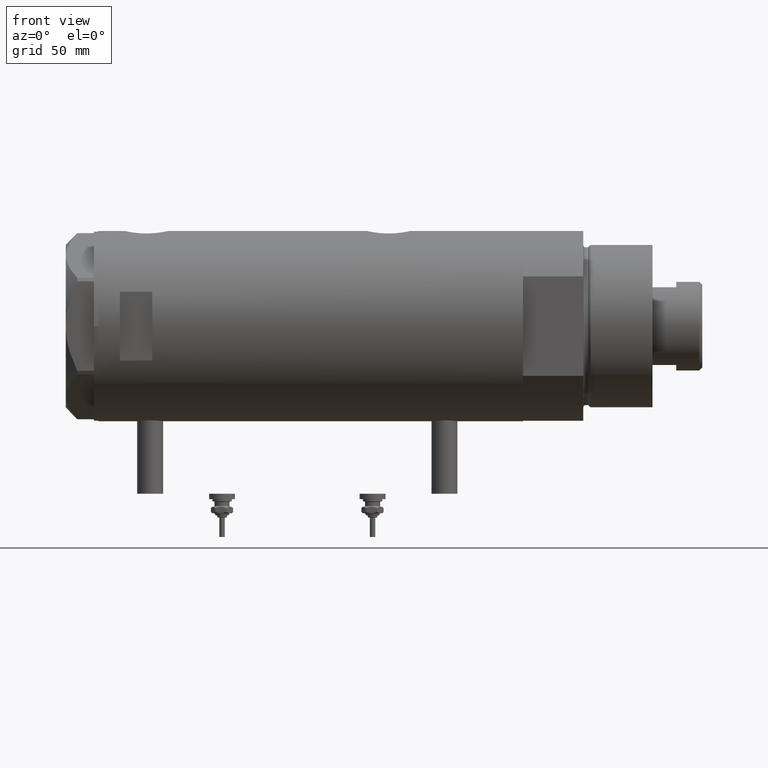
[diagram: clean part render]
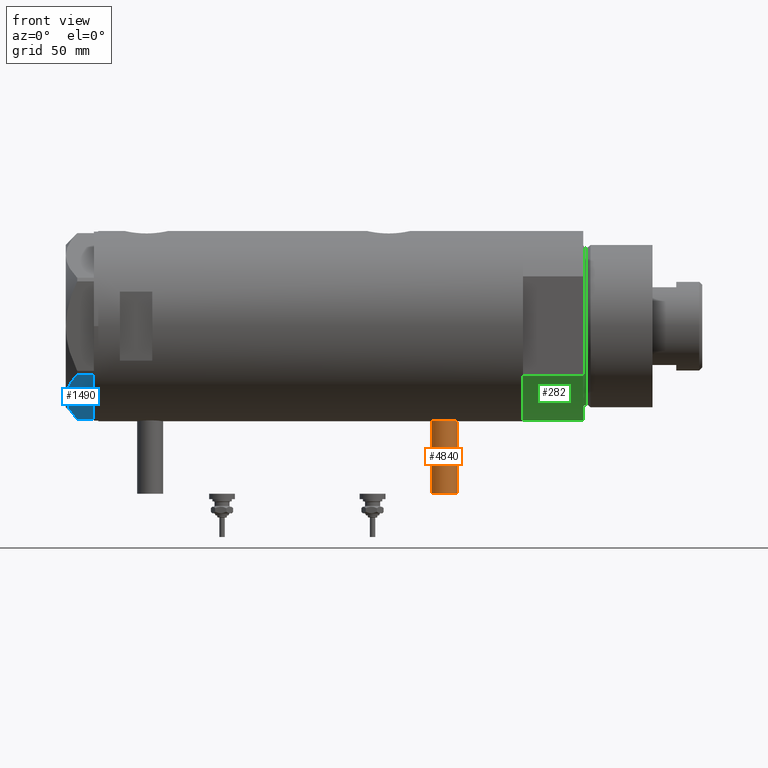
[diagram: same view with three faces highlighted in distinct colors, each labeled with its STEP entity id]
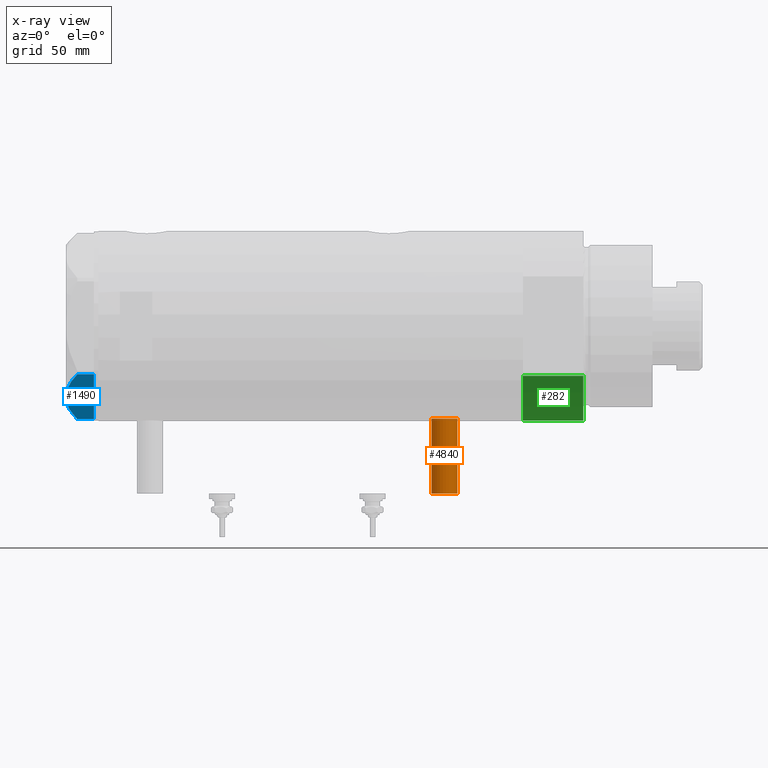
[diagram: x-ray of the same camera — body ghosted, the three highlighted faces saturated]
A machine part, front view with three faces highlighted in distinct colors.
The next image is the same camera in x-ray (body ghosted, the three faces saturated) — at least one of them is partly hidden behind the body in this view.
Their STEP definitions:

[orange] entity #4840 — the highlighted cylindrical surface (edge-blend (fillet) strip) has radius 6 mm, axis along (0, 0, 1).
#95 = VERTEX_POINT ( 'NONE', #5891 ) ;
#842 = EDGE_LOOP ( 'NONE', ( #2243, #4774, #2473, #2392 ) ) ;
#871 = DIRECTION ( 'NONE',  ( 0.000000000000000000, 0.000000000000000000, 1.000000000000000000 ) ) ;
#893 = EDGE_CURVE ( 'NONE', #1483, #4525, #3929, .T. ) ;
#1008 = EDGE_CURVE ( 'NONE', #95, #4525, #2934, .T. ) ;
#1260 = CARTESIAN_POINT ( 'NONE',  ( -77.50000000000000000, 7.347880794884122694E-16, -55.90000000000000568 ) ) ;
#1483 = VERTEX_POINT ( 'NONE', #3334 ) ;
#1525 = VERTEX_POINT ( 'NONE', #1927 ) ;
#1558 = LINE ( 'NONE', #5694, #2765 ) ;
#1927 = CARTESIAN_POINT ( 'NONE',  ( -77.50000000000000000, 0.000000000000000000, -67.90000000000001990 ) ) ;
#1941 = DIRECTION ( 'NONE',  ( -1.000000000000000000, 0.000000000000000000, 0.000000000000000000 ) ) ;
#2075 = DIRECTION ( 'NONE',  ( 1.000000000000000000, -0.000000000000000000, -0.000000000000000000 ) ) ;
#2243 = ORIENTED_EDGE ( 'NONE', *, *, #893, .F. ) ;
#2392 = ORIENTED_EDGE ( 'NONE', *, *, #1008, .T. ) ;
#2473 = ORIENTED_EDGE ( 'NONE', *, *, #3994, .T. ) ;
#2765 = VECTOR ( 'NONE', #2939, 1000.000000000000000 ) ;
#2934 = CIRCLE ( 'NONE', #5931, 6.000000000000005329 ) ;
#2939 = DIRECTION ( 'NONE',  ( 1.000000000000000000, -0.000000000000000000, -0.000000000000000000 ) ) ;
#2961 = CYLINDRICAL_SURFACE ( 'NONE', #3634, 6.000000000000005329 ) ;
#3265 = DIRECTION ( 'NONE',  ( 0.000000000000000000, 0.000000000000000000, 1.000000000000000000 ) ) ;
#3334 = CARTESIAN_POINT ( 'NONE',  ( -77.50000000000000000, 7.347880794884119736E-16, -55.90000000000000568 ) ) ;
#3624 = CARTESIAN_POINT ( 'NONE',  ( -42.79999999999999716, 7.347880794884119736E-16, -55.90000000000000568 ) ) ;
#3634 = AXIS2_PLACEMENT_3D ( 'NONE', #4409, #2075, #3878 ) ;
#3651 = EDGE_CURVE ( 'NONE', #1525, #1483, #4121, .T. ) ;
#3878 = DIRECTION ( 'NONE',  ( 0.000000000000000000, 0.000000000000000000, -1.000000000000000000 ) ) ;
#3929 = LINE ( 'NONE', #1260, #5056 ) ;
#3994 = EDGE_CURVE ( 'NONE', #1525, #95, #1558, .T. ) ;
#4121 = CIRCLE ( 'NONE', #4602, 6.000000000000005329 ) ;
#4409 = CARTESIAN_POINT ( 'NONE',  ( -77.50000000000000000, 0.000000000000000000, -61.90000000000001279 ) ) ;
#4525 = VERTEX_POINT ( 'NONE', #3624 ) ;
#4602 = AXIS2_PLACEMENT_3D ( 'NONE', #5128, #5042, #871 ) ;
#4774 = ORIENTED_EDGE ( 'NONE', *, *, #3651, .F. ) ;
#4835 = CARTESIAN_POINT ( 'NONE',  ( -42.79999999999999716, 0.000000000000000000, -61.90000000000001279 ) ) ;
#4840 = ADVANCED_FACE ( 'NONE', ( #4863 ), #2961, .T. ) ;
#4863 = FACE_OUTER_BOUND ( 'NONE', #842, .T. ) ;
#5042 = DIRECTION ( 'NONE',  ( -1.000000000000000000, 0.000000000000000000, 0.000000000000000000 ) ) ;
#5056 = VECTOR ( 'NONE', #5819, 1000.000000000000000 ) ;
#5128 = CARTESIAN_POINT ( 'NONE',  ( -77.50000000000000000, 0.000000000000000000, -61.90000000000001279 ) ) ;
#5694 = CARTESIAN_POINT ( 'NONE',  ( -77.50000000000000000, 0.000000000000000000, -67.90000000000001990 ) ) ;
#5819 = DIRECTION ( 'NONE',  ( 1.000000000000000000, -0.000000000000000000, -0.000000000000000000 ) ) ;
#5891 = CARTESIAN_POINT ( 'NONE',  ( -42.79999999999999716, 0.000000000000000000, -67.90000000000001990 ) ) ;
#5931 = AXIS2_PLACEMENT_3D ( 'NONE', #4835, #1941, #3265 ) ;

[blue] entity #1490 — the highlighted planar face has unit normal (0, 0.5, 0.866).
#52 = ORIENTED_EDGE ( 'NONE', *, *, #1676, .T. ) ;
#283 = CARTESIAN_POINT ( 'NONE',  ( -20.42709085942861336, 31.79635891736469588, 12.99999999999999822 ) ) ;
#352 = DIRECTION ( 'NONE',  ( -0.8660254037844387076, -0.4999999999999998890, 0.000000000000000000 ) ) ;
#490 = ORIENTED_EDGE ( 'NONE', *, *, #5834, .T. ) ;
#530 = PLANE ( 'NONE',  #5060 ) ;
#591 = CARTESIAN_POINT ( 'NONE',  ( -14.95332775978647710, 34.95663751642333494, 12.73960743196719925 ) ) ;
#620 = CARTESIAN_POINT ( 'NONE',  ( -36.78005154776143826, 22.35497266190836640, 7.709124142616966324 ) ) ;
#694 = CARTESIAN_POINT ( 'NONE',  ( -0.9699484522385801721, 43.02994532381674020, 13.00000000000000000 ) ) ;
#988 = CARTESIAN_POINT ( 'NONE',  ( -12.63736081963745050, 36.29376165275263588, 12.35956205105863148 ) ) ;
#1073 = ORIENTED_EDGE ( 'NONE', *, *, #1938, .F. ) ;
#1107 = CARTESIAN_POINT ( 'NONE',  ( -18.87499999999999645, 32.69245899286256218, 13.00000000000000000 ) ) ;
#1194 = CARTESIAN_POINT ( 'NONE',  ( -31.76569840794909183, 25.25001079699087114, 10.17879673963432552 ) ) ;
#1413 = CARTESIAN_POINT ( 'NONE',  ( -6.659529780759594786, 39.74506401221885454, 10.58681170757598800 ) ) ;
#1490 = ADVANCED_FACE ( 'NONE', ( #2815 ), #530, .F. ) ;
#1540 = ORIENTED_EDGE ( 'NONE', *, *, #1830, .T. ) ;
#1649 = CARTESIAN_POINT ( 'NONE',  ( -25.02345495740896197, 29.14264686810219374, 12.37795492145956366 ) ) ;
#1676 = EDGE_CURVE ( 'NONE', #4155, #2048, #3316, .T. ) ;
#1830 = EDGE_CURVE ( 'NONE', #1956, #4155, #5490, .T. ) ;
#1863 = VECTOR ( 'NONE', #3443, 1000.000000000000000 ) ;
#1938 = EDGE_CURVE ( 'NONE', #2927, #3714, #3728, .T. ) ;
#1956 = VERTEX_POINT ( 'NONE', #5241 ) ;
#1977 = LINE ( 'NONE', #694, #4238 ) ;
#2048 = VERTEX_POINT ( 'NONE', #4474 ) ;
#2323 = CARTESIAN_POINT ( 'NONE',  ( -0.9699484522384331786, 43.02994532381681836, 7.709124142616899711 ) ) ;
#2352 = EDGE_LOOP ( 'NONE', ( #1540, #52, #6007, #1073, #490 ) ) ;
#2366 = CARTESIAN_POINT ( 'NONE',  ( -11.12401302890051547, 37.16749340711212568, 11.98878493998159023 ) ) ;
#2481 = CARTESIAN_POINT ( 'NONE',  ( -26.54034249379619226, 28.26687144063865276, 12.01242981158359413 ) ) ;
#2520 = EDGE_CURVE ( 'NONE', #3714, #2048, #3498, .T. ) ;
#2674 = CARTESIAN_POINT ( 'NONE',  ( 0.000000000000000000, 43.58994532381674247, 0.000000000000000000 ) ) ;
#2815 = FACE_OUTER_BOUND ( 'NONE', #2352, .T. ) ;
#2927 = VERTEX_POINT ( 'NONE', #2323 ) ;
#2970 = CARTESIAN_POINT ( 'NONE',  ( -29.55075297405562651, 26.52881013948959321, 11.04644118613042991 ) ) ;
#3058 = CARTESIAN_POINT ( 'NONE',  ( -28.80058011347671965, 26.96192264248358228, 11.30742055474462049 ) ) ;
#3307 = CARTESIAN_POINT ( 'NONE',  ( -3.783045159267922841, 41.40580318275689820, 9.269459228581807153 ) ) ;
#3316 = LINE ( 'NONE', #4230, #1863 ) ;
#3443 = DIRECTION ( 'NONE',  ( 0.000000000000000000, 0.000000000000000000, 1.000000000000000000 ) ) ;
#3456 = CARTESIAN_POINT ( 'NONE',  ( -21.96683860604064620, 30.90738514137411741, 12.87183830165160003 ) ) ;
#3481 = CARTESIAN_POINT ( 'NONE',  ( 0.000000000000000000, 43.58994532381674247, 13.00000000000000000 ) ) ;
#3482 = CARTESIAN_POINT ( 'NONE',  ( -31.03235934281896391, 25.67340430365103998, 10.48240969891262608 ) ) ;
#3498 = B_SPLINE_CURVE_WITH_KNOTS ( 'NONE', 3,
 ( #1107, #283, #3456, #1649, #2481, #3058, #2970, #3482, #1194, #3544, #4817, #620 ),
 .UNSPECIFIED., .F., .F.,
 ( 4, 2, 2, 2, 2, 4 ),
 ( 0.02259271946349905580, 0.02789559809390772943, 0.03319847672431640306, 0.03584991603952074335, 0.03850135535472508364, 0.04380423398513375727 ),
 .UNSPECIFIED. ) ;
#3544 = CARTESIAN_POINT ( 'NONE',  ( -33.94595399727582929, 23.99123964559089828, 9.210778219600410210 ) ) ;
#3714 = VERTEX_POINT ( 'NONE', #4623 ) ;
#3728 = B_SPLINE_CURVE_WITH_KNOTS ( 'NONE', 3,
 ( #3795, #3307, #1413, #2366, #988, #591, #4727, #5632, #4309, #4222 ),
 .UNSPECIFIED., .F., .F.,
 ( 4, 2, 2, 2, 4 ),
 ( 0.001231023567492486089, 0.01191187151549577723, 0.01725229548949741218, 0.01992250747649823572, 0.02259271946349905580 ),
 .UNSPECIFIED. ) ;
#3795 = CARTESIAN_POINT ( 'NONE',  ( -0.9699484522384331786, 43.02994532381681836, 7.709124142616899711 ) ) ;
#4155 = VERTEX_POINT ( 'NONE', #5413 ) ;
#4222 = CARTESIAN_POINT ( 'NONE',  ( -18.87499999999999645, 32.69245899286256218, 13.00000000000000000 ) ) ;
#4230 = CARTESIAN_POINT ( 'NONE',  ( -36.78005154776143826, 22.35497266190836996, 13.00000000000000000 ) ) ;
#4238 = VECTOR ( 'NONE', #4861, 1000.000000000000000 ) ;
#4309 = CARTESIAN_POINT ( 'NONE',  ( -18.09346002773000706, 33.14368130623509501, 13.00000000000000178 ) ) ;
#4334 = DIRECTION ( 'NONE',  ( 0.4999999999999998890, -0.8660254037844387076, 0.000000000000000000 ) ) ;
#4474 = CARTESIAN_POINT ( 'NONE',  ( -36.78005154776143826, 22.35497266190836640, 7.709124142616966324 ) ) ;
#4623 = CARTESIAN_POINT ( 'NONE',  ( -18.87499999999999645, 32.69245899286256218, 13.00000000000000000 ) ) ;
#4727 = CARTESIAN_POINT ( 'NONE',  ( -15.73313492417779180, 34.50641564014599538, 12.83692902789789514 ) ) ;
#4817 = CARTESIAN_POINT ( 'NONE',  ( -35.37320095427632793, 23.16721823076656506, 8.489459328478153211 ) ) ;
#4861 = DIRECTION ( 'NONE',  ( 0.000000000000000000, 0.000000000000000000, -1.000000000000000000 ) ) ;
#5060 = AXIS2_PLACEMENT_3D ( 'NONE', #3481, #4334, #5868 ) ;
#5241 = CARTESIAN_POINT ( 'NONE',  ( -0.9699484522385801721, 43.02994532381674020, 0.000000000000000000 ) ) ;
#5351 = VECTOR ( 'NONE', #352, 1000.000000000000000 ) ;
#5413 = CARTESIAN_POINT ( 'NONE',  ( -36.78005154776143826, 22.35497266190836996, 0.000000000000000000 ) ) ;
#5490 = LINE ( 'NONE', #2674, #5351 ) ;
#5632 = CARTESIAN_POINT ( 'NONE',  ( -17.30879953081282707, 33.59670525535268837, 12.96759879420491579 ) ) ;
#5834 = EDGE_CURVE ( 'NONE', #2927, #1956, #1977, .T. ) ;
#5868 = DIRECTION ( 'NONE',  ( 0.8660254037844387076, 0.4999999999999998890, 0.000000000000000000 ) ) ;
#6007 = ORIENTED_EDGE ( 'NONE', *, *, #2520, .F. ) ;

[green] entity #282 — the highlighted cylindrical surface (partial cylindrical patch) has radius 44 mm, axis along (-1, -0, 0).
#282 = ADVANCED_FACE ( 'NONE', ( #3272 ), #1715, .T. ) ;
#708 = EDGE_CURVE ( 'NONE', #1633, #3770, #5467, .T. ) ;
#878 = AXIS2_PLACEMENT_3D ( 'NONE', #2206, #5878, #3666 ) ;
#983 = ORIENTED_EDGE ( 'NONE', *, *, #1154, .T. ) ;
#991 = CIRCLE ( 'NONE', #1474, 44.00000000000000000 ) ;
#1034 = ORIENTED_EDGE ( 'NONE', *, *, #708, .T. ) ;
#1154 = EDGE_CURVE ( 'NONE', #5483, #1633, #5542, .T. ) ;
#1357 = CARTESIAN_POINT ( 'NONE',  ( 23.01629857296780557, 37.50000000000000000, 0.000000000000000000 ) ) ;
#1474 = AXIS2_PLACEMENT_3D ( 'NONE', #2061, #4394, #2579 ) ;
#1633 = VERTEX_POINT ( 'NONE', #5614 ) ;
#1715 = CYLINDRICAL_SURFACE ( 'NONE', #5625, 44.00000000000000000 ) ;
#2023 = EDGE_CURVE ( 'NONE', #3799, #3770, #991, .T. ) ;
#2061 = CARTESIAN_POINT ( 'NONE',  ( 0.000000000000000000, 0.000000000000000000, 27.89999999999999858 ) ) ;
#2206 = CARTESIAN_POINT ( 'NONE',  ( 0.000000000000000000, 0.000000000000000000, 0.000000000000000000 ) ) ;
#2312 = CARTESIAN_POINT ( 'NONE',  ( 23.01629857296780557, -37.50000000000000000, 0.000000000000000000 ) ) ;
#2341 = DIRECTION ( 'NONE',  ( -0.000000000000000000, -0.000000000000000000, 1.000000000000000000 ) ) ;
#2579 = DIRECTION ( 'NONE',  ( 1.000000000000000000, 0.000000000000000000, 0.000000000000000000 ) ) ;
#2810 = DIRECTION ( 'NONE',  ( -0.000000000000000000, -0.000000000000000000, -1.000000000000000000 ) ) ;
#3077 = CARTESIAN_POINT ( 'NONE',  ( 23.01629857296780557, -37.50000000000000000, 27.89999999999999858 ) ) ;
#3153 = VECTOR ( 'NONE', #4190, 1000.000000000000000 ) ;
#3272 = FACE_OUTER_BOUND ( 'NONE', #4027, .T. ) ;
#3578 = DIRECTION ( 'NONE',  ( -1.000000000000000000, 0.000000000000000000, 0.000000000000000000 ) ) ;
#3645 = CARTESIAN_POINT ( 'NONE',  ( 23.01629857296780557, 37.50000000000000000, 27.89999999999999858 ) ) ;
#3666 = DIRECTION ( 'NONE',  ( 1.000000000000000000, 0.000000000000000000, 0.000000000000000000 ) ) ;
#3770 = VERTEX_POINT ( 'NONE', #3645 ) ;
#3799 = VERTEX_POINT ( 'NONE', #3077 ) ;
#4027 = EDGE_LOOP ( 'NONE', ( #4661, #5017, #983, #1034 ) ) ;
#4190 = DIRECTION ( 'NONE',  ( -0.000000000000000000, -0.000000000000000000, 1.000000000000000000 ) ) ;
#4257 = LINE ( 'NONE', #2312, #3153 ) ;
#4394 = DIRECTION ( 'NONE',  ( 0.000000000000000000, 0.000000000000000000, 1.000000000000000000 ) ) ;
#4661 = ORIENTED_EDGE ( 'NONE', *, *, #2023, .F. ) ;
#4920 = CARTESIAN_POINT ( 'NONE',  ( 23.01629857296780557, -37.50000000000000000, 0.000000000000000000 ) ) ;
#4970 = CARTESIAN_POINT ( 'NONE',  ( 0.000000000000000000, 0.000000000000000000, 27.89999999999999858 ) ) ;
#5017 = ORIENTED_EDGE ( 'NONE', *, *, #5127, .F. ) ;
#5127 = EDGE_CURVE ( 'NONE', #5483, #3799, #4257, .T. ) ;
#5438 = VECTOR ( 'NONE', #2341, 1000.000000000000000 ) ;
#5467 = LINE ( 'NONE', #1357, #5438 ) ;
#5483 = VERTEX_POINT ( 'NONE', #4920 ) ;
#5542 = CIRCLE ( 'NONE', #878, 44.00000000000000000 ) ;
#5614 = CARTESIAN_POINT ( 'NONE',  ( 23.01629857296780557, 37.50000000000000000, 0.000000000000000000 ) ) ;
#5625 = AXIS2_PLACEMENT_3D ( 'NONE', #4970, #2810, #3578 ) ;
#5878 = DIRECTION ( 'NONE',  ( 0.000000000000000000, 0.000000000000000000, 1.000000000000000000 ) ) ;